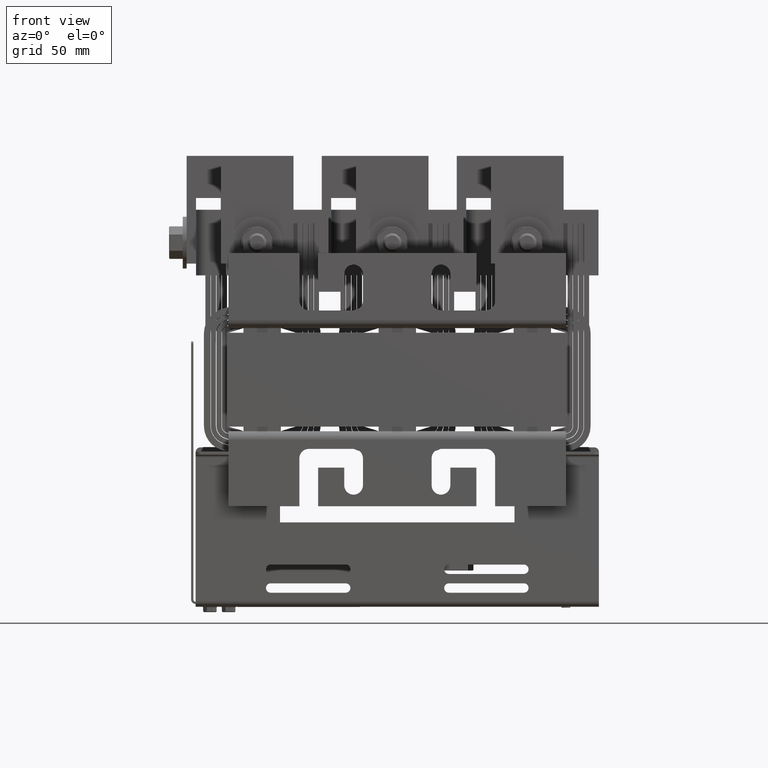
[diagram: clean part render]
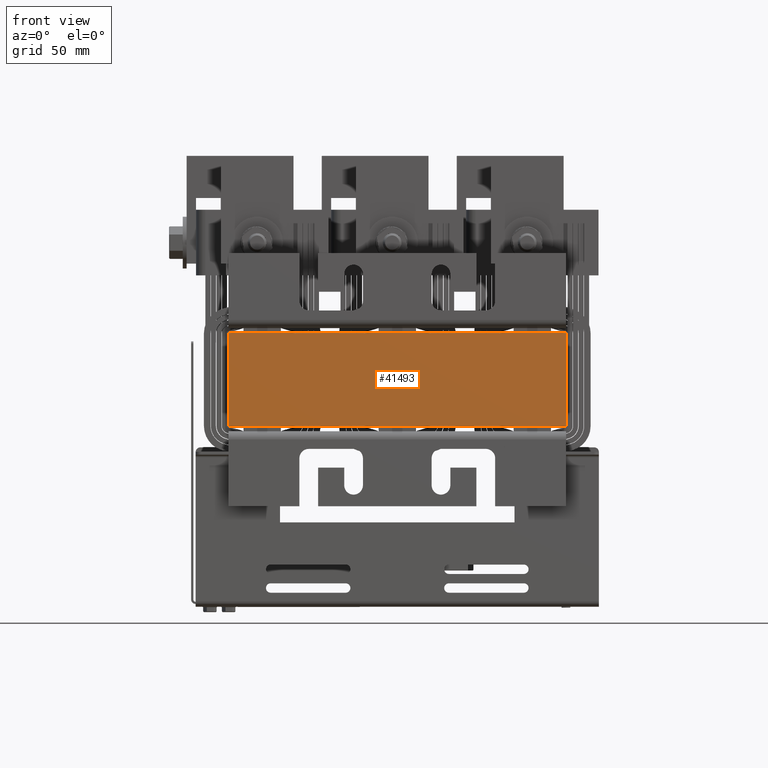
[diagram: same view with one face highlighted and labeled with its STEP entity id]
A machine part, front view. The second image highlights one B-rep face of the part: STEP entity #41493.
In plain terms, the highlighted planar face has unit normal (-0, -1, -0).
Its self-contained STEP definition (entity closure, byte-faithful):
#2079=PLANE('',#44695);
#3414=FACE_OUTER_BOUND('',#5741,.T.);
#5741=EDGE_LOOP('',(#28420,#28421,#28422,#28423));
#8353=LINE('',#60866,#12472);
#8358=LINE('',#60875,#12477);
#8362=LINE('',#60883,#12481);
#8363=LINE('',#60885,#12482);
#12472=VECTOR('',#48724,0.393700787401575);
#12477=VECTOR('',#48731,0.393700787401575);
#12481=VECTOR('',#48739,0.393700787401575);
#12482=VECTOR('',#48742,0.393700787401575);
#18195=VERTEX_POINT('',#60862);
#18197=VERTEX_POINT('',#60865);
#18199=VERTEX_POINT('',#60871);
#18202=VERTEX_POINT('',#60881);
#22249=EDGE_CURVE('',#18197,#18195,#8353,.T.);
#22254=EDGE_CURVE('',#18199,#18197,#8358,.T.);
#22258=EDGE_CURVE('',#18195,#18202,#8362,.T.);
#22259=EDGE_CURVE('',#18202,#18199,#8363,.T.);
#28420=ORIENTED_EDGE('',*,*,#22259,.T.);
#28421=ORIENTED_EDGE('',*,*,#22254,.T.);
#28422=ORIENTED_EDGE('',*,*,#22249,.T.);
#28423=ORIENTED_EDGE('',*,*,#22258,.T.);
#41493=ADVANCED_FACE('',(#3414),#2079,.T.);
#44695=AXIS2_PLACEMENT_3D('',#60884,#48740,#48741);
#48724=DIRECTION('',(1.,1.35985322351288E-16,0.));
#48731=DIRECTION('',(0.,0.,-1.));
#48739=DIRECTION('',(0.,0.,1.));
#48740=DIRECTION('center_axis',(1.35985322351288E-16,-1.,0.));
#48741=DIRECTION('ref_axis',(0.,0.,-1.));
#48742=DIRECTION('',(-1.,-1.35985322351288E-16,0.));
#60862=CARTESIAN_POINT('',(7.71526407111042,-0.958644886780046,-1.25));
#60865=CARTESIAN_POINT('',(-1.28473592888958,-0.958644886780047,-1.25));
#60866=CARTESIAN_POINT('',(7.71526407111042,-0.958644886780046,-1.25));
#60871=CARTESIAN_POINT('',(-1.28473592888958,-0.958644886780047,1.25));
#60875=CARTESIAN_POINT('',(-1.28473592888958,-0.958644886780047,0.));
#60881=CARTESIAN_POINT('',(7.71526407111042,-0.958644886780046,1.25));
#60883=CARTESIAN_POINT('',(7.71526407111042,-0.958644886780046,0.));
#60884=CARTESIAN_POINT('Origin',(7.71526407111042,-0.958644886780046,0.));
#60885=CARTESIAN_POINT('',(7.71526407111042,-0.958644886780046,1.25));